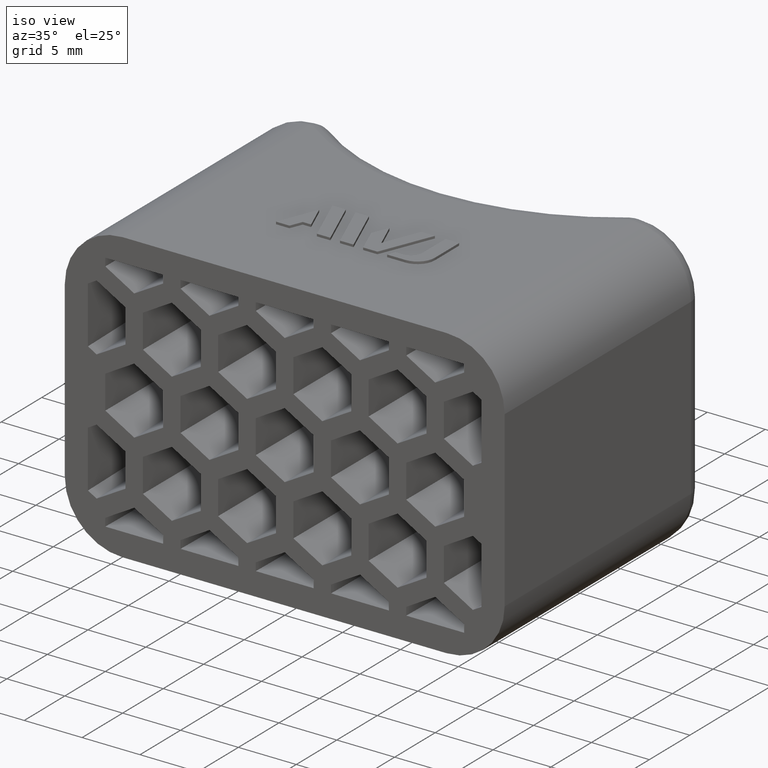
[diagram: clean part render]
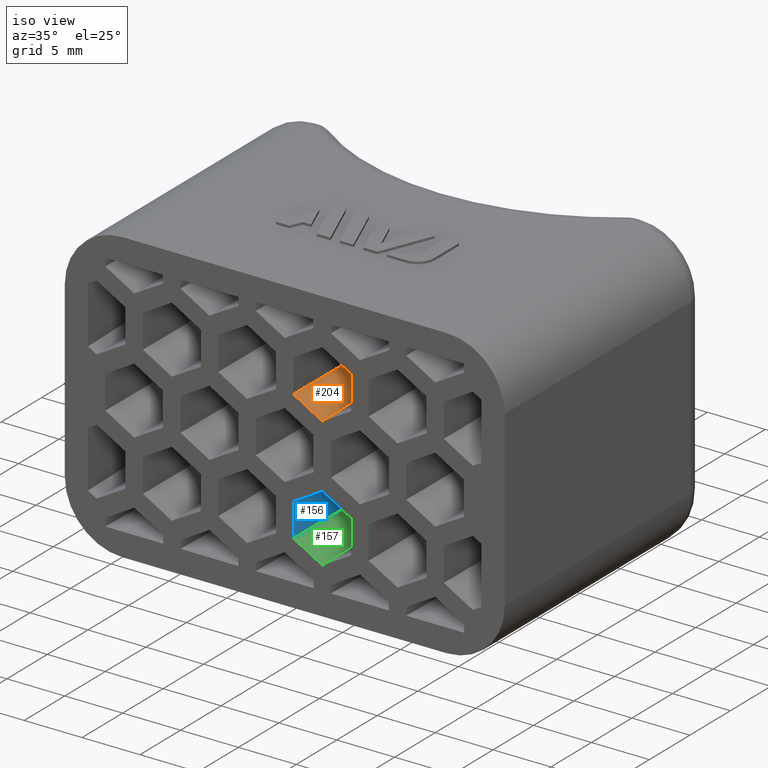
[diagram: same view with three faces highlighted in distinct colors, each labeled with its STEP entity id]
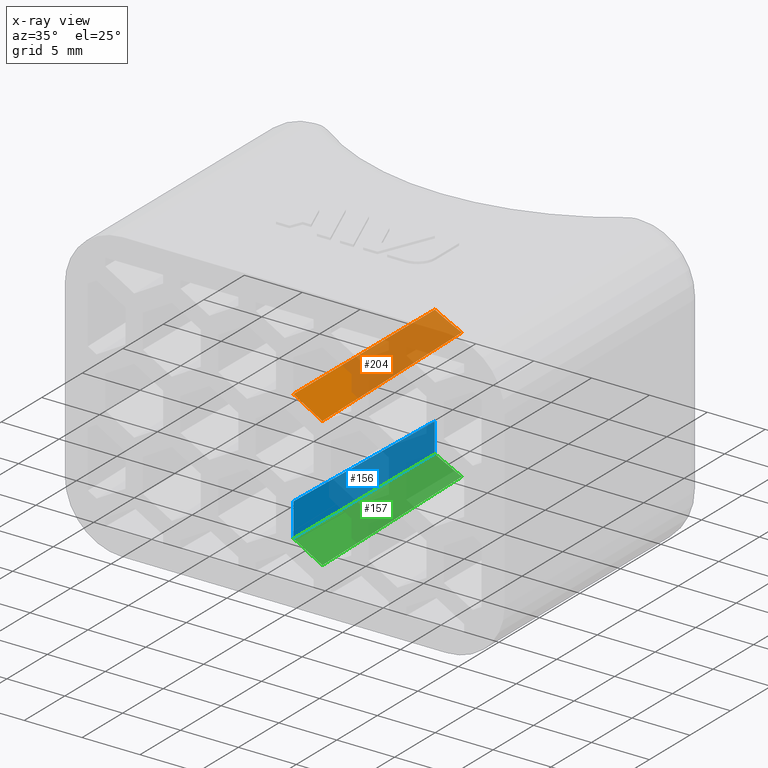
[diagram: x-ray of the same camera — body ghosted, the three highlighted faces saturated]
A machine part, iso view with three faces highlighted in distinct colors.
The next image is the same camera in x-ray (body ghosted, the three faces saturated) — at least one of them is partly hidden behind the body in this view.
Their STEP definitions:

[orange] entity #204 — the highlighted planar face has unit normal (-0.4999, 0.0175, -0.8659).
#204 = ADVANCED_FACE( '', ( #618 ), #619, .F. );
#618 = FACE_OUTER_BOUND( '', #1154, .T. );
#619 = PLANE( '', #1155 );
#1154 = EDGE_LOOP( '', ( #2510, #2511, #2512, #2513 ) );
#1155 = AXIS2_PLACEMENT_3D( '', #2514, #2515, #2516 );
#2510 = ORIENTED_EDGE( '', *, *, #3904, .T. );
#2511 = ORIENTED_EDGE( '', *, *, #3905, .T. );
#2512 = ORIENTED_EDGE( '', *, *, #3530, .T. );
#2513 = ORIENTED_EDGE( '', *, *, #3902, .F. );
#2514 = CARTESIAN_POINT( '', ( 3.24999999999999, -6.93889390390723E-015, 2.74241377865072 ) );
#2515 = DIRECTION( '', ( -0.499923847578196, 0.0174524064372835, -0.865893503920754 ) );
#2516 = DIRECTION( '', ( -0.866025403784439, 0.000000000000000, 0.500000000000000 ) );
#3530 = EDGE_CURVE( '', #4271, #4269, #4272, .T. );
#3902 = EDGE_CURVE( '', #4887, #4269, #4889, .T. );
#3904 = EDGE_CURVE( '', #4887, #4891, #4892, .T. );
#3905 = EDGE_CURVE( '', #4891, #4271, #4893, .T. );
#4269 = VERTEX_POINT( '', #5424 );
#4271 = VERTEX_POINT( '', #5427 );
#4272 = LINE( '', #5428, #5429 );
#4887 = VERTEX_POINT( '', #6327 );
#4889 = LINE( '', #6329, #6330 );
#4891 = VERTEX_POINT( '', #6333 );
#4892 = ELLIPSE( '', #6334, 28.4099602186776, 24.6000000000000 );
#4893 = LINE( '', #6335, #6336 );
#5424 = CARTESIAN_POINT( '', ( 3.25000000000000, -6.93889390390723E-015, 2.74241377865072 ) );
#5427 = CARTESIAN_POINT( '', ( 0.749999999999996, -6.93889390390723E-015, 4.18578945162479 ) );
#5428 = CARTESIAN_POINT( '', ( 3.24999999999999, -6.93889390390723E-015, 2.74241377865072 ) );
#5429 = VECTOR( '', #6768, 1000.00000000000 );
#6327 = CARTESIAN_POINT( '', ( 3.25000000000000, 17.2156300060879, 3.08940122061638 ) );
#6329 = CARTESIAN_POINT( '', ( 3.25000000000000, -6.93889390390723E-015, 2.74241377865072 ) );
#6330 = VECTOR( '', #7316, 1000.00000000000 );
#6333 = CARTESIAN_POINT( '', ( 1.04712528377927, 17.0222961072424, 4.35733481419778 ) );
#6334 = AXIS2_PLACEMENT_3D( '', #7318, #7319, #7320 );
#6335 = CARTESIAN_POINT( '', ( 0.749517787015300, -0.0276259633910786, 4.18551104582826 ) );
#6336 = VECTOR( '', #7321, 1000.00000000000 );
#6768 = DIRECTION( '', ( 0.866025403784439, 0.000000000000000, -0.500000000000000 ) );
#7316 = DIRECTION( '', ( -3.00523943436880E-018, -0.999796942337605, -0.0201512801671579 ) );
#7318 = CARTESIAN_POINT( '', ( 0.000000000000000, 41.6000000000000, 5.45726566491140 ) );
#7319 = DIRECTION( '', ( -0.499923847578196, 0.0174524064372835, -0.865893503920754 ) );
#7320 = DIRECTION( '', ( -0.865366346075250, 0.0302100515148758, 0.500228387706894 ) );
#7321 = DIRECTION( '', ( -0.0174515205435363, -0.999796942337605, -0.0100756400835790 ) );

[blue] entity #156 — the highlighted planar face has unit normal (-0.9998, 0.0175, 0).
#156 = ADVANCED_FACE( '', ( #522 ), #523, .F. );
#522 = FACE_OUTER_BOUND( '', #1058, .T. );
#523 = PLANE( '', #1059 );
#1058 = EDGE_LOOP( '', ( #2168, #2169, #2170, #2171 ) );
#1059 = AXIS2_PLACEMENT_3D( '', #2172, #2173, #2174 );
#2168 = ORIENTED_EDGE( '', *, *, #3796, .T. );
#2169 = ORIENTED_EDGE( '', *, *, #3574, .F. );
#2170 = ORIENTED_EDGE( '', *, *, #3799, .F. );
#2171 = ORIENTED_EDGE( '', *, *, #3800, .F. );
#2172 = CARTESIAN_POINT( '', ( 0.749999999999998, -6.93889390390723E-015, 1.44337567297406 ) );
#2173 = DIRECTION( '', ( -0.999847695156391, 0.0174524064372835, 2.77513483070255E-016 ) );
#2174 = DIRECTION( '', ( -0.0174524064372835, -0.999847695156391, 0.000000000000000 ) );
#3574 = EDGE_CURVE( '', #4357, #4359, #4360, .F. );
#3796 = EDGE_CURVE( '', #4725, #4359, #4726, .T. );
#3799 = EDGE_CURVE( '', #4729, #4357, #4730, .T. );
#3800 = EDGE_CURVE( '', #4725, #4729, #4731, .F. );
#4357 = VERTEX_POINT( '', #5556 );
#4359 = VERTEX_POINT( '', #5559 );
#4360 = LINE( '', #5560, #5561 );
#4725 = VERTEX_POINT( '', #6088 );
#4726 = LINE( '', #6089, #6090 );
#4729 = VERTEX_POINT( '', #6094 );
#4730 = LINE( '', #6095, #6096 );
#4731 = LINE( '', #6097, #6098 );
#5556 = CARTESIAN_POINT( '', ( 0.749999999999995, -6.93889390390723E-015, -7.07254079757292 ) );
#5559 = CARTESIAN_POINT( '', ( 0.749999999999996, -6.93889390390723E-015, -4.18578945162479 ) );
#5560 = CARTESIAN_POINT( '', ( 0.749999999999997, -6.93889390390723E-015, -1.29903810567666 ) );
#5561 = VECTOR( '', #6812, 1000.00000000000 );
#6088 = CARTESIAN_POINT( '', ( 1.04712528377926, 17.0222961072425, -4.35733481419779 ) );
#6089 = CARTESIAN_POINT( '', ( 0.750761388923200, 0.0436199421964198, -4.18622903972456 ) );
#6090 = VECTOR( '', #7152, 1000.00000000000 );
#6094 = CARTESIAN_POINT( '', ( 1.04712528377926, 17.0222961072424, -6.90099543499992 ) );
#6095 = CARTESIAN_POINT( '', ( 0.751497398215629, 0.0857858863196267, -7.07167627431004 ) );
#6096 = VECTOR( '', #7157, 1000.00000000000 );
#6097 = CARTESIAN_POINT( '', ( 1.04712528377926, 17.0222961072424, -10.5000000000000 ) );
#6098 = VECTOR( '', #7158, 1000.00000000000 );
#6812 = DIRECTION( '', ( -2.77555756156289E-016, 0.000000000000000, -1.00000000000000 ) );
#7152 = DIRECTION( '', ( -0.0174515205435363, -0.999796942337605, 0.0100756400835790 ) );
#7157 = DIRECTION( '', ( -0.0174515205435363, -0.999796942337605, -0.0100756400835790 ) );
#7158 = DIRECTION( '', ( 0.000000000000000, 0.000000000000000, 1.00000000000000 ) );

[green] entity #157 — the highlighted planar face has unit normal (-0.4999, 0.0175, -0.8659).
#157 = ADVANCED_FACE( '', ( #524 ), #525, .F. );
#524 = FACE_OUTER_BOUND( '', #1060, .T. );
#525 = PLANE( '', #1061 );
#1060 = EDGE_LOOP( '', ( #2175, #2176, #2177, #2178 ) );
#1061 = AXIS2_PLACEMENT_3D( '', #2179, #2180, #2181 );
#2175 = ORIENTED_EDGE( '', *, *, #3799, .T. );
#2176 = ORIENTED_EDGE( '', *, *, #3573, .F. );
#2177 = ORIENTED_EDGE( '', *, *, #3790, .F. );
#2178 = ORIENTED_EDGE( '', *, *, #3801, .F. );
#2179 = CARTESIAN_POINT( '', ( -1.62500000000001, -6.93889390390723E-015, -5.70133390824755 ) );
#2180 = DIRECTION( '', ( -0.499923847578196, 0.0174524064372835, -0.865893503920754 ) );
#2181 = DIRECTION( '', ( -0.866025403784438, -9.68803173089423E-019, 0.500000000000000 ) );
#3573 = EDGE_CURVE( '', #4355, #4357, #4358, .F. );
#3790 = EDGE_CURVE( '', #4715, #4355, #4716, .T. );
#3799 = EDGE_CURVE( '', #4729, #4357, #4730, .T. );
#3801 = EDGE_CURVE( '', #4729, #4715, #4732, .F. );
#4355 = VERTEX_POINT( '', #5553 );
#4357 = VERTEX_POINT( '', #5556 );
#4358 = LINE( '', #5557, #5558 );
#4715 = VERTEX_POINT( '', #6074 );
#4716 = LINE( '', #6075, #6076 );
#4729 = VERTEX_POINT( '', #6094 );
#4730 = LINE( '', #6095, #6096 );
#4732 = ELLIPSE( '', #6099, 28.4099602186776, 24.6000000000000 );
#5553 = CARTESIAN_POINT( '', ( 3.24999999999999, -6.93889390390723E-015, -8.51591647054698 ) );
#5556 = CARTESIAN_POINT( '', ( 0.749999999999995, -6.93889390390723E-015, -7.07254079757292 ) );
#5557 = CARTESIAN_POINT( '', ( 1.99999999999999, -6.93889390390723E-015, -7.79422863405995 ) );
#5558 = VECTOR( '', #6811, 1000.00000000000 );
#6074 = CARTESIAN_POINT( '', ( 3.24999999999999, 17.2156300060879, -8.16892902858133 ) );
#6075 = CARTESIAN_POINT( '', ( 3.24999999999999, 0.0567059248553423, -8.51477354148758 ) );
#6076 = VECTOR( '', #7142, 1000.00000000000 );
#6094 = CARTESIAN_POINT( '', ( 1.04712528377926, 17.0222961072424, -6.90099543499992 ) );
#6095 = CARTESIAN_POINT( '', ( 0.751497398215629, 0.0857858863196267, -7.07167627431004 ) );
#6096 = VECTOR( '', #7157, 1000.00000000000 );
#6099 = AXIS2_PLACEMENT_3D( '', #7159, #7160, #7161 );
#6811 = DIRECTION( '', ( 0.866025403784438, 0.000000000000000, -0.500000000000000 ) );
#7142 = DIRECTION( '', ( -2.50411194413244E-018, -0.999796942337605, -0.0201512801671580 ) );
#7157 = DIRECTION( '', ( -0.0174515205435363, -0.999796942337605, -0.0100756400835790 ) );
#7159 = CARTESIAN_POINT( '', ( 0.000000000000000, 41.6000000000000, -5.80106458428630 ) );
#7160 = DIRECTION( '', ( -0.499923847578196, 0.0174524064372835, -0.865893503920754 ) );
#7161 = DIRECTION( '', ( -0.865366346075250, 0.0302100515148758, 0.500228387706895 ) );